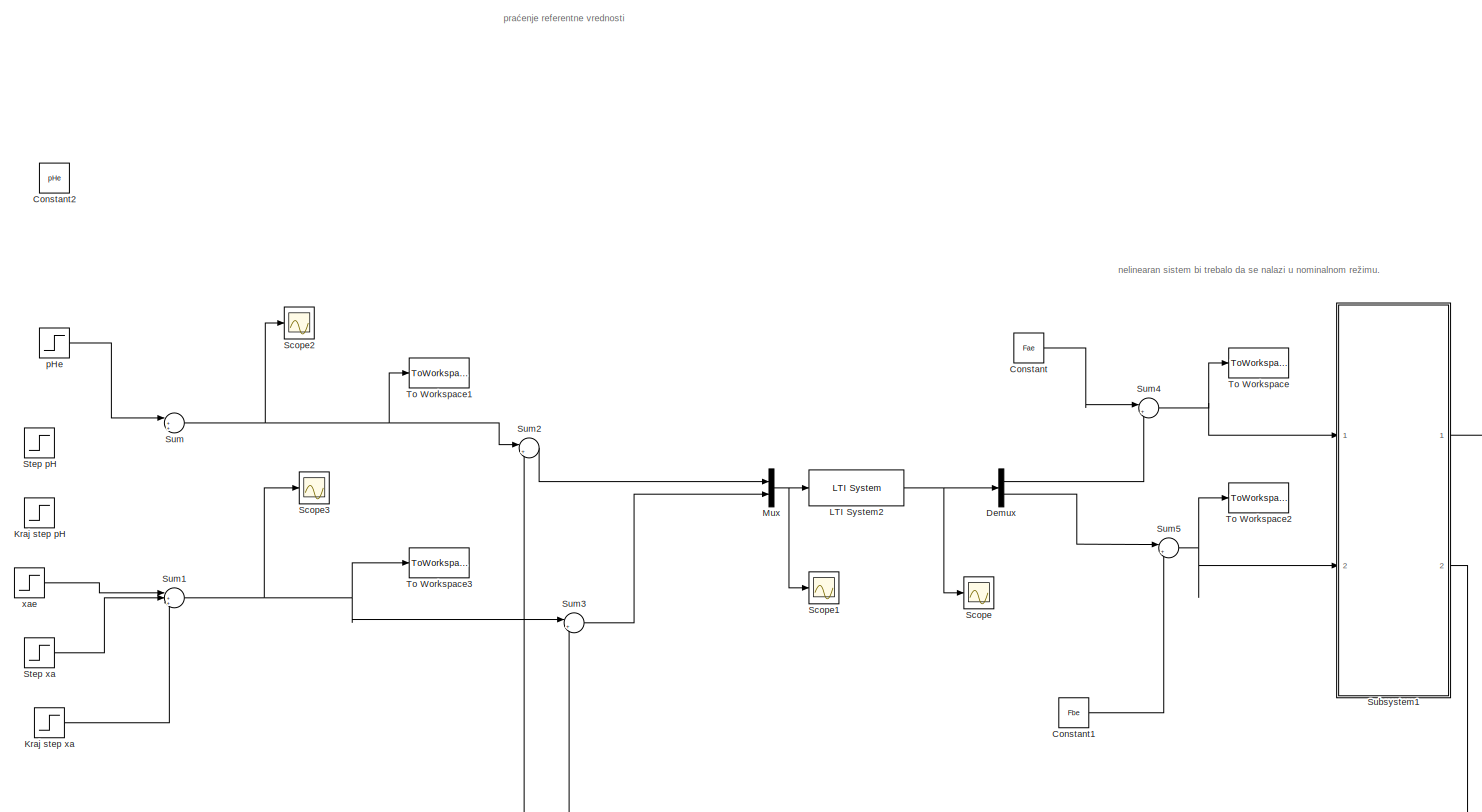
[diagram: root canvas - part 1/2, full width, middle band]
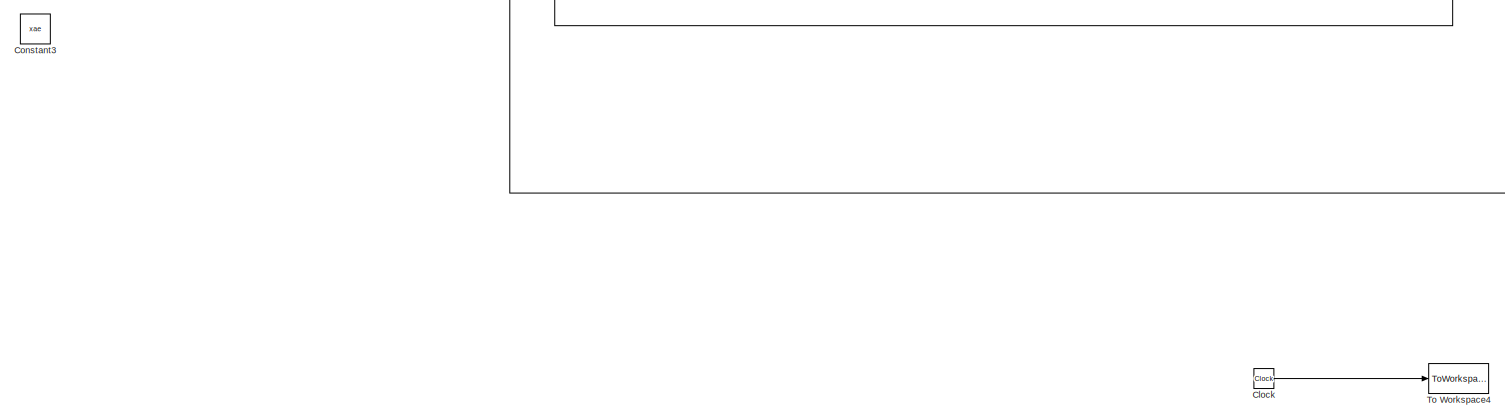
[diagram: root canvas - part 2/2, full width, bottom band]
MODEL slx_229a093e6fac
KIND model
CONFIG AbsTol = auto
CONFIG EnableMultiTasking = on
CONFIG FixedStep = 1
CONFIG MaxStep = auto
CONFIG MinStep = auto
CONFIG RelTol = 1e-3
CONFIG SampleTimeConstraint = Unconstrained
CONFIG Solver = ode4
CONFIG SolverName = ode4
CONFIG StartTime = 0.0
CONFIG StopTime = tfin
BLOCK [Clock] Clock
BLOCK [Constant] Constant
  Value = Fae
BLOCK [Constant] Constant1
  Value = Fbe
BLOCK [Constant] Constant2
  Value = pHe
BLOCK [Constant] Constant3
  Value = xae
BLOCK [Demux] Demux
  Outputs = 2
  Ports = [1, 2]
BLOCK [Step] Kraj step pH
  After = -pHstep
  SampleTime = 0
  Time = tu1_step2
BLOCK [Step] Kraj step xa
  After = -xastep
  SampleTime = 0
  Time = tu2_step2
BLOCK [Reference] LTI System2  REF=cstblocks/LTI System
  Ports = [1, 1]
  SourceBlock = cstblocks/LTI System
  SourceProductBaseCode = CT
  SourceType = LTI Block
BLOCK [Mux] Mux
  DisplayOption = bar
  Inputs = 2
  Ports = [2, 1]
BLOCK [Scope] Scope
  Floating = off
  NumInputPorts = 1
  Ports = [1]
  ScopeSpecificationString = Simulink.scopes.TimeScopeBlockCfg('CurrentConfiguration', extmgr.ConfigurationSet(extmgr.Configuration('Core','General UI',true),extmgr.Configuration('Core','Source UI',true),extmgr.Configuration('Sources','WiredSimulink',true,'DataLoggingVariableName','ScopeData1'),extmgr.Configuration('Visuals','Time Domain',true),extmgr.Configuration('Tools','Plot Navigation',true),extmgr.Configuration('Tools',...<+40ch>
BLOCK [Scope] Scope1
  Floating = off
  NumInputPorts = 1
  Ports = [1]
  ScopeSpecificationString = Simulink.scopes.TimeScopeBlockCfg('CurrentConfiguration', extmgr.ConfigurationSet(extmgr.Configuration('Core','General UI',true),extmgr.Configuration('Core','Source UI',true),extmgr.Configuration('Sources','WiredSimulink',true,'DataLoggingVariableName','ScopeData2'),extmgr.Configuration('Visuals','Time Domain',true),extmgr.Configuration('Tools','Plot Navigation',true),extmgr.Configuration('Tools',...<+40ch>
BLOCK [Scope] Scope2
  Floating = off
  NumInputPorts = 1
  Ports = [1]
  ScopeSpecificationString = Simulink.scopes.TimeScopeBlockCfg('CurrentConfiguration', extmgr.ConfigurationSet(extmgr.Configuration('Core','General UI',true),extmgr.Configuration('Core','Source UI',true),extmgr.Configuration('Sources','WiredSimulink',true,'DataLoggingVariableName','ScopeData3'),extmgr.Configuration('Visuals','Time Domain',true),extmgr.Configuration('Tools','Plot Navigation',true),extmgr.Configuration('Tools',...<+40ch>
BLOCK [Scope] Scope3
  Floating = off
  NumInputPorts = 1
  Ports = [1]
  ScopeSpecificationString = Simulink.scopes.TimeScopeBlockCfg('CurrentConfiguration', extmgr.ConfigurationSet(extmgr.Configuration('Core','General UI',true),extmgr.Configuration('Core','Source UI',true),extmgr.Configuration('Sources','WiredSimulink',true,'DataLoggingVariableName','ScopeData4'),extmgr.Configuration('Visuals','Time Domain',true),extmgr.Configuration('Tools','Plot Navigation',true),extmgr.Configuration('Tools',...<+40ch>
BLOCK [Step] Step pH
  After = pHstep
  SampleTime = 0
  Time = tu1_step1
BLOCK [Step] Step xa
  After = xastep
  SampleTime = 0
  Time = tu2_step1
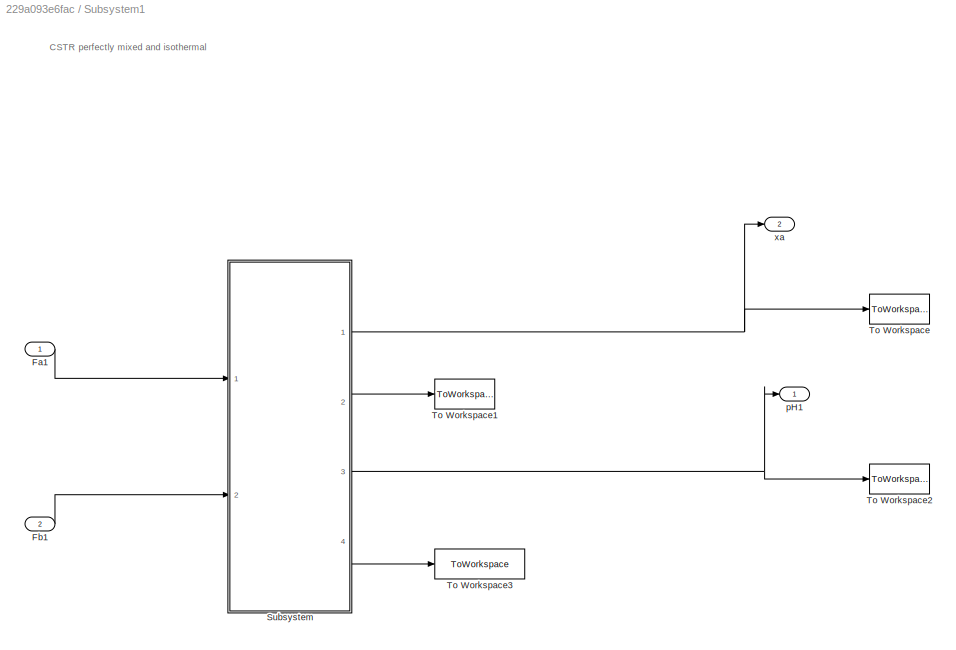
BLOCK [SubSystem] Subsystem1
  Ports = [2, 2]
  RequestExecContextInheritance = off
BLOCK [Inport] Subsystem1/Fa1
BLOCK [Inport] Subsystem1/Fb1
  Port = 2
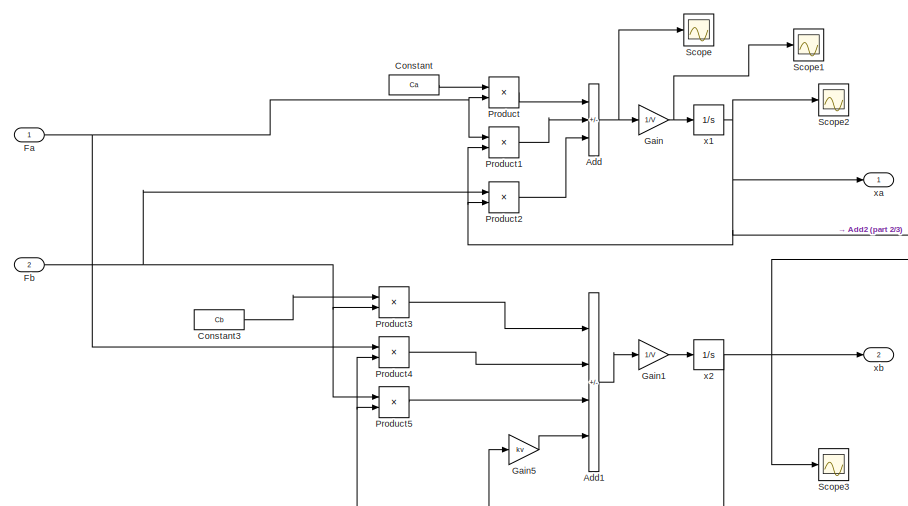
[diagram: Subsystem1/Subsystem - part 1/3, top left region]
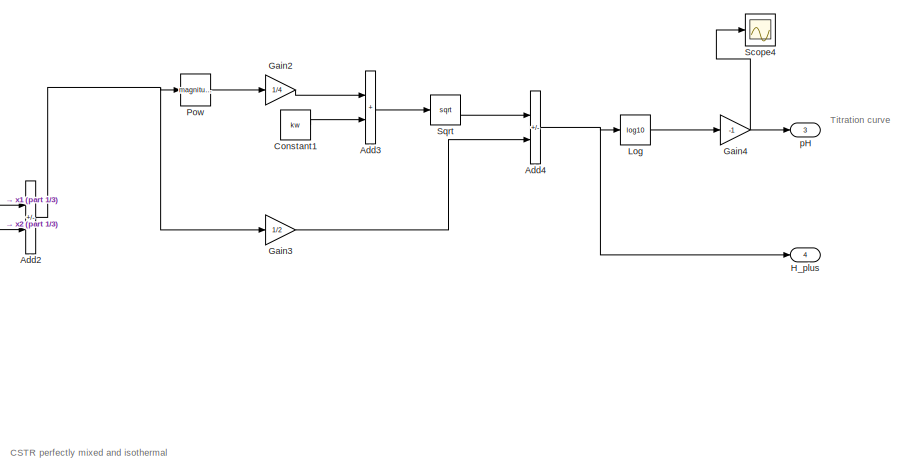
[diagram: Subsystem1/Subsystem - part 2/3, top right region]
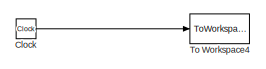
[diagram: Subsystem1/Subsystem - part 3/3, bottom left region]
BLOCK [SubSystem] Subsystem1/Subsystem
  Ports = [2, 4]
  RequestExecContextInheritance = off
BLOCK [Sum] Subsystem1/Subsystem/Add
  IconShape = rectangular
  Inputs = +--
  Ports = [3, 1]
BLOCK [Sum] Subsystem1/Subsystem/Add1
  IconShape = rectangular
  Inputs = +---
  Ports = [4, 1]
BLOCK [Sum] Subsystem1/Subsystem/Add2
  IconShape = rectangular
  Inputs = -+
  Ports = [2, 1]
BLOCK [Sum] Subsystem1/Subsystem/Add3
  IconShape = rectangular
  Ports = [2, 1]
BLOCK [Sum] Subsystem1/Subsystem/Add4
  IconShape = rectangular
  Inputs = +-
  Ports = [2, 1]
BLOCK [Clock] Subsystem1/Subsystem/Clock
BLOCK [Constant] Subsystem1/Subsystem/Constant
  Value = Ca
BLOCK [Constant] Subsystem1/Subsystem/Constant1
  Value = kw
BLOCK [Constant] Subsystem1/Subsystem/Constant3
  Value = Cb
BLOCK [Inport] Subsystem1/Subsystem/Fa
BLOCK [Inport] Subsystem1/Subsystem/Fb
  Port = 2
BLOCK [Gain] Subsystem1/Subsystem/Gain
  Gain = 1/V
BLOCK [Gain] Subsystem1/Subsystem/Gain1
  Gain = 1/V
BLOCK [Gain] Subsystem1/Subsystem/Gain2
  Gain = 1/4
BLOCK [Gain] Subsystem1/Subsystem/Gain3
  Gain = 1/2
BLOCK [Gain] Subsystem1/Subsystem/Gain4
  Gain = -1
BLOCK [Gain] Subsystem1/Subsystem/Gain5
  Gain = kv
BLOCK [Outport] Subsystem1/Subsystem/H_plus
  Port = 4
BLOCK [Math] Subsystem1/Subsystem/Log
  Operator = log10
  Ports = [1, 1]
BLOCK [Math] Subsystem1/Subsystem/Pow
  Operator = magnitude^2
  Ports = [1, 1]
  RndMeth = Zero
  SignedPower = on
BLOCK [Product] Subsystem1/Subsystem/Product
  Ports = [2, 1]
BLOCK [Product] Subsystem1/Subsystem/Product1
  Ports = [2, 1]
BLOCK [Product] Subsystem1/Subsystem/Product2
  Ports = [2, 1]
BLOCK [Product] Subsystem1/Subsystem/Product3
  Ports = [2, 1]
BLOCK [Product] Subsystem1/Subsystem/Product4
  Ports = [2, 1]
BLOCK [Product] Subsystem1/Subsystem/Product5
  Ports = [2, 1]
BLOCK [Scope] Subsystem1/Subsystem/Scope
  Floating = off
  NumInputPorts = 1
  Ports = [1]
  ScopeSpecificationString = Simulink.scopes.TimeScopeBlockCfg('CurrentConfiguration', extmgr.ConfigurationSet(extmgr.Configuration('Core','General UI',true),extmgr.Configuration('Core','Source UI',true),extmgr.Configuration('Sources','WiredSimulink',true),extmgr.Configuration('Visuals','Time Domain',true,'SerializedDisplays',{struct('MinYLimReal','-0.000000002','MaxYLimReal','0.000000019','YLabelReal','','MinYLimMag','0.0000...<+1355ch>
BLOCK [Scope] Subsystem1/Subsystem/Scope1
  Floating = off
  NumInputPorts = 1
  Ports = [1]
  ScopeSpecificationString = Simulink.scopes.TimeScopeBlockCfg('CurrentConfiguration', extmgr.ConfigurationSet(extmgr.Configuration('Core','General UI',true),extmgr.Configuration('Core','Source UI',true),extmgr.Configuration('Sources','WiredSimulink',true,'DataLoggingVariableName','ScopeData1'),extmgr.Configuration('Visuals','Time Domain',true,'SerializedDisplays',{struct('MinYLimReal','-0.00000000007','MaxYLimReal','0.000000...<+1411ch>
BLOCK [Scope] Subsystem1/Subsystem/Scope2
  Floating = off
  NumInputPorts = 1
  Ports = [1]
  ScopeSpecificationString = Simulink.scopes.TimeScopeBlockCfg('CurrentConfiguration', extmgr.ConfigurationSet(extmgr.Configuration('Core','General UI',true),extmgr.Configuration('Core','Source UI',true),extmgr.Configuration('Sources','WiredSimulink',true,'DataLoggingVariableName','ScopeData2'),extmgr.Configuration('Visuals','Time Domain',true,'SerializedDisplays',{struct('MinYLimReal','-0.2575','MaxYLimReal','0.09265','YLabe...<+1376ch>
BLOCK [Scope] Subsystem1/Subsystem/Scope3
  Floating = off
  NumInputPorts = 1
  Ports = [1]
  ScopeSpecificationString = Simulink.scopes.TimeScopeBlockCfg('CurrentConfiguration', extmgr.ConfigurationSet(extmgr.Configuration('Core','General UI',true),extmgr.Configuration('Core','Source UI',true),extmgr.Configuration('Sources','WiredSimulink',true,'DataLoggingVariableName','ScopeData3'),extmgr.Configuration('Visuals','Time Domain',true,'SerializedDisplays',{struct('MinYLimReal','-0.00000006','MaxYLimReal','0.00000056'...<+1385ch>
BLOCK [Scope] Subsystem1/Subsystem/Scope4
  Floating = off
  NumInputPorts = 1
  Ports = [1]
  ScopeSpecificationString = Simulink.scopes.TimeScopeBlockCfg('CurrentConfiguration', extmgr.ConfigurationSet(extmgr.Configuration('Core','General UI',true),extmgr.Configuration('Core','Source UI',true),extmgr.Configuration('Sources','WiredSimulink',true,'DataLoggingVariableName','ScopeData4'),extmgr.Configuration('Visuals','Time Domain',true,'SerializedDisplays',{struct('MinYLimReal','6.52512','MaxYLimReal','8.15112','YLabe...<+1406ch>
BLOCK [Sqrt] Subsystem1/Subsystem/Sqrt
BLOCK [ToWorkspace] Subsystem1/Subsystem/To Workspace4
  MaxDataPoints = inf
  Ports = [1]
  SampleTime = -1
  VariableName = t_out1
BLOCK [Outport] Subsystem1/Subsystem/pH
  Port = 3
BLOCK [Integrator] Subsystem1/Subsystem/x1
  InitialCondition = xa0
  Ports = [1, 1]
BLOCK [Integrator] Subsystem1/Subsystem/x2
  InitialCondition = xb0
  Ports = [1, 1]
BLOCK [Outport] Subsystem1/Subsystem/xa
BLOCK [Outport] Subsystem1/Subsystem/xb
  Port = 2
BLOCK [ToWorkspace] Subsystem1/To Workspace
  MaxDataPoints = inf
  Ports = [1]
  SampleTime = -1
  VariableName = xa_out
BLOCK [ToWorkspace] Subsystem1/To Workspace1
  MaxDataPoints = inf
  Ports = [1]
  SampleTime = -1
  VariableName = xb_out
BLOCK [ToWorkspace] Subsystem1/To Workspace2
  MaxDataPoints = inf
  Ports = [1]
  SampleTime = -1
  VariableName = pH_out
BLOCK [ToWorkspace] Subsystem1/To Workspace3
  MaxDataPoints = inf
  Ports = [1]
  SampleTime = -1
  VariableName = H_plus_out
BLOCK [Outport] Subsystem1/pH1
BLOCK [Outport] Subsystem1/xa
  Port = 2
BLOCK [Sum] Sum
  Inputs = |+++
  Ports = [3, 1]
BLOCK [Sum] Sum1
  Inputs = |+++
  Ports = [3, 1]
BLOCK [Sum] Sum2
  Inputs = |+-
  Ports = [2, 1]
BLOCK [Sum] Sum3
  Inputs = |+-
  Ports = [2, 1]
BLOCK [Sum] Sum4
  Inputs = |++
  NameLocation = top
  Ports = [2, 1]
BLOCK [Sum] Sum5
  Inputs = |++
  Ports = [2, 1]
BLOCK [ToWorkspace] To Workspace
  MaxDataPoints = inf
  Ports = [1]
  SampleTime = -1
  VariableName = Fa_out
BLOCK [ToWorkspace] To Workspace1
  MaxDataPoints = inf
  Ports = [1]
  SampleTime = -1
  VariableName = pH_ref_out
BLOCK [ToWorkspace] To Workspace2
  MaxDataPoints = inf
  Ports = [1]
  SampleTime = -1
  VariableName = Fb_out
BLOCK [ToWorkspace] To Workspace3
  MaxDataPoints = inf
  Ports = [1]
  SampleTime = -1
  VariableName = xa_ref_out
BLOCK [ToWorkspace] To Workspace4
  MaxDataPoints = inf
  Ports = [1]
  SampleTime = -1
  VariableName = t_out
BLOCK [Step] pHe
  After = pHe
  SampleTime = 0
  Time = 0
BLOCK [Step] xae
  After = xae
  SampleTime = 0
  Time = 0
ANNOTATION (root): praćenje referentne vrednosti
ANNOTATION (root): nelinearan sistem bi trebalo da se nalazi u nominalnom režimu.
ANNOTATION Subsystem1: CSTR perfectly mixed and isothermal
ANNOTATION Subsystem1/Subsystem: CSTR perfectly mixed and isothermal
ANNOTATION Subsystem1/Subsystem: Titration curve
LINE Clock:1 -> To Workspace4:1
LINE Constant1:1 -> Sum5:2
LINE Constant:1 -> Sum4:1
LINE Demux:1 -> Sum4:2
LINE Demux:2 -> Sum5:1
LINE Kraj step xa:1 -> Sum1:3
NET LTI System2:1 -> Demux:1, Scope:1
NET Mux:1 -> LTI System2:1, Scope1:1
LINE Step xa:1 -> Sum1:2
LINE Subsystem1/Fa1:1 -> Subsystem1/Subsystem:1
LINE Subsystem1/Fb1:1 -> Subsystem1/Subsystem:2
LINE Subsystem1/Subsystem/Add1:1 -> Subsystem1/Subsystem/Gain1:1
NET Subsystem1/Subsystem/Add2:1 -> Subsystem1/Subsystem/Gain3:1, Subsystem1/Subsystem/Pow:1
LINE Subsystem1/Subsystem/Add3:1 -> Subsystem1/Subsystem/Sqrt:1
NET Subsystem1/Subsystem/Add4:1 -> Subsystem1/Subsystem/H_plus:1, Subsystem1/Subsystem/Log:1
NET Subsystem1/Subsystem/Add:1 -> Subsystem1/Subsystem/Gain:1, Subsystem1/Subsystem/Scope:1
LINE Subsystem1/Subsystem/Clock:1 -> Subsystem1/Subsystem/To Workspace4:1
LINE Subsystem1/Subsystem/Constant1:1 -> Subsystem1/Subsystem/Add3:2
LINE Subsystem1/Subsystem/Constant3:1 -> Subsystem1/Subsystem/Product3:1
LINE Subsystem1/Subsystem/Constant:1 -> Subsystem1/Subsystem/Product:1
NET Subsystem1/Subsystem/Fa:1 -> Subsystem1/Subsystem/Product1:1, Subsystem1/Subsystem/Product4:1, Subsystem1/Subsystem/Product:2
NET Subsystem1/Subsystem/Fb:1 -> Subsystem1/Subsystem/Product2:1, Subsystem1/Subsystem/Product3:2, Subsystem1/Subsystem/Product5:1
LINE Subsystem1/Subsystem/Gain1:1 -> Subsystem1/Subsystem/x2:1
LINE Subsystem1/Subsystem/Gain2:1 -> Subsystem1/Subsystem/Add3:1
LINE Subsystem1/Subsystem/Gain3:1 -> Subsystem1/Subsystem/Add4:2
NET Subsystem1/Subsystem/Gain4:1 -> Subsystem1/Subsystem/Scope4:1, Subsystem1/Subsystem/pH:1
LINE Subsystem1/Subsystem/Gain5:1 -> Subsystem1/Subsystem/Add1:4
NET Subsystem1/Subsystem/Gain:1 -> Subsystem1/Subsystem/Scope1:1, Subsystem1/Subsystem/x1:1
LINE Subsystem1/Subsystem/Log:1 -> Subsystem1/Subsystem/Gain4:1
LINE Subsystem1/Subsystem/Pow:1 -> Subsystem1/Subsystem/Gain2:1
LINE Subsystem1/Subsystem/Product1:1 -> Subsystem1/Subsystem/Add:2
LINE Subsystem1/Subsystem/Product2:1 -> Subsystem1/Subsystem/Add:3
LINE Subsystem1/Subsystem/Product3:1 -> Subsystem1/Subsystem/Add1:1
LINE Subsystem1/Subsystem/Product4:1 -> Subsystem1/Subsystem/Add1:2
LINE Subsystem1/Subsystem/Product5:1 -> Subsystem1/Subsystem/Add1:3
LINE Subsystem1/Subsystem/Product:1 -> Subsystem1/Subsystem/Add:1
LINE Subsystem1/Subsystem/Sqrt:1 -> Subsystem1/Subsystem/Add4:1
NET Subsystem1/Subsystem/x1:1 -> Subsystem1/Subsystem/Add2:1, Subsystem1/Subsystem/Product1:2, Subsystem1/Subsystem/Product2:2, Subsystem1/Subsystem/Scope2:1, Subsystem1/Subsystem/xa:1
NET Subsystem1/Subsystem/x2:1 -> Subsystem1/Subsystem/Add2:2, Subsystem1/Subsystem/Gain5:1, Subsystem1/Subsystem/Product4:2, Subsystem1/Subsystem/Product5:2, Subsystem1/Subsystem/Scope3:1, Subsystem1/Subsystem/xb:1
NET Subsystem1/Subsystem:1 -> Subsystem1/To Workspace:1, Subsystem1/xa:1
LINE Subsystem1/Subsystem:2 -> Subsystem1/To Workspace1:1
NET Subsystem1/Subsystem:3 -> Subsystem1/To Workspace2:1, Subsystem1/pH1:1
LINE Subsystem1/Subsystem:4 -> Subsystem1/To Workspace3:1
LINE Subsystem1:1 -> Sum2:2
LINE Subsystem1:2 -> Sum3:2
NET Sum1:1 -> Scope3:1, Sum3:1, To Workspace3:1
LINE Sum2:1 -> Mux:1
LINE Sum3:1 -> Mux:2
NET Sum4:1 -> Subsystem1:1, To Workspace:1
NET Sum5:1 -> Subsystem1:2, To Workspace2:1
NET Sum:1 -> Scope2:1, Sum2:1, To Workspace1:1
LINE pHe:1 -> Sum:1
LINE xae:1 -> Sum1:1
note: NET lines group one-source signal fan-out (src -> all destinations, sorted); 1:1 wires keep LINE
